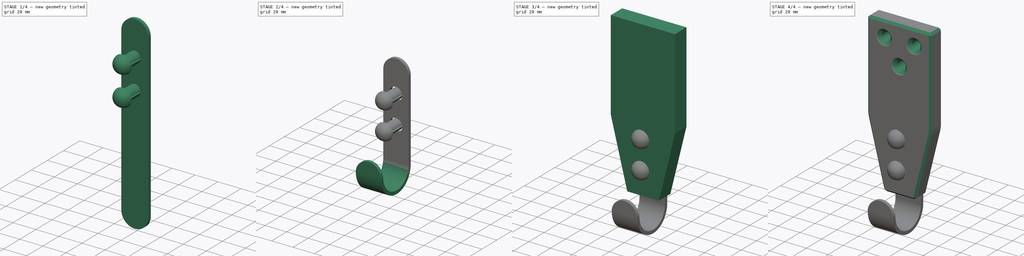
[diagram: build sequence overview — one tinted view per stage of 4, left to right]
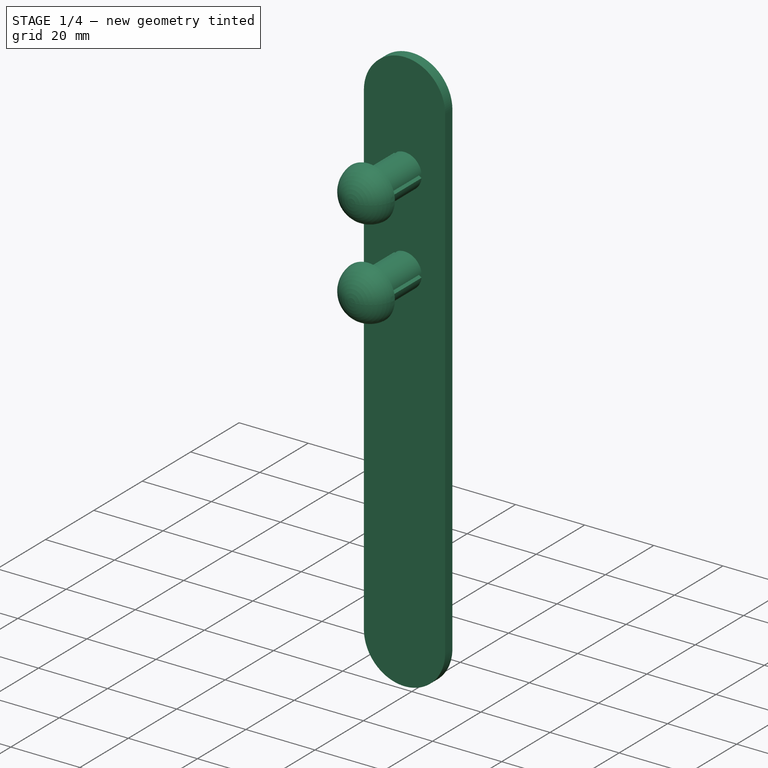
[diagram: stage 1 of 4 — iso view after this stage's code; geometry added in this stage tinted green]
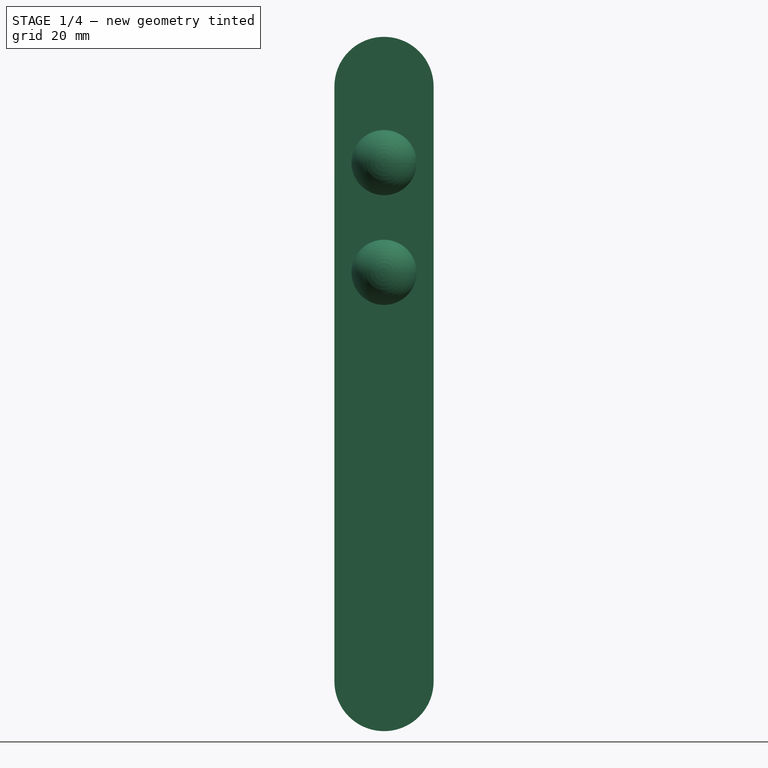
[diagram: stage 1 of 4 — front view after this stage's code; geometry added in this stage tinted green]
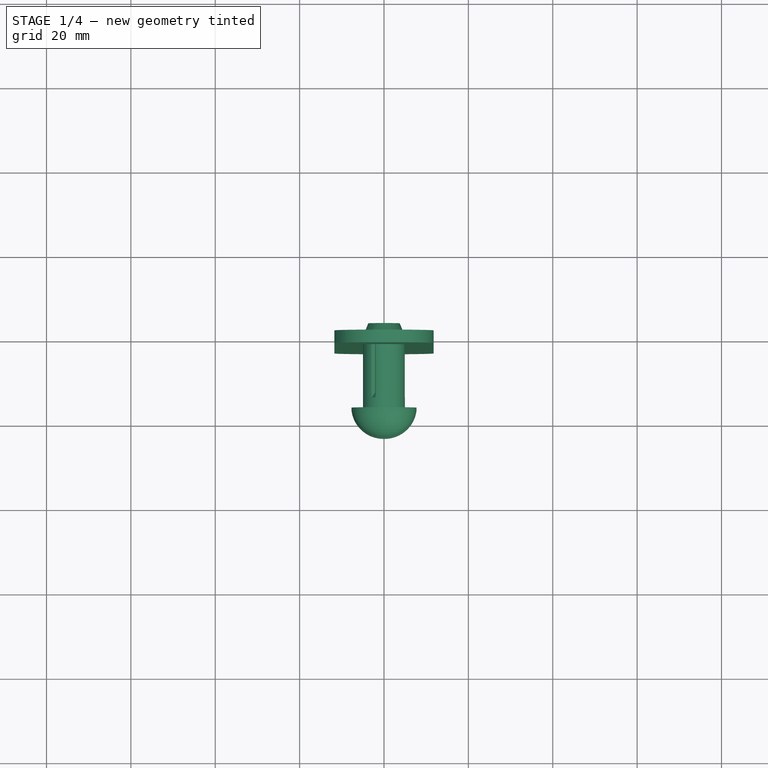
[diagram: stage 1 of 4 — top view after this stage's code; geometry added in this stage tinted green]
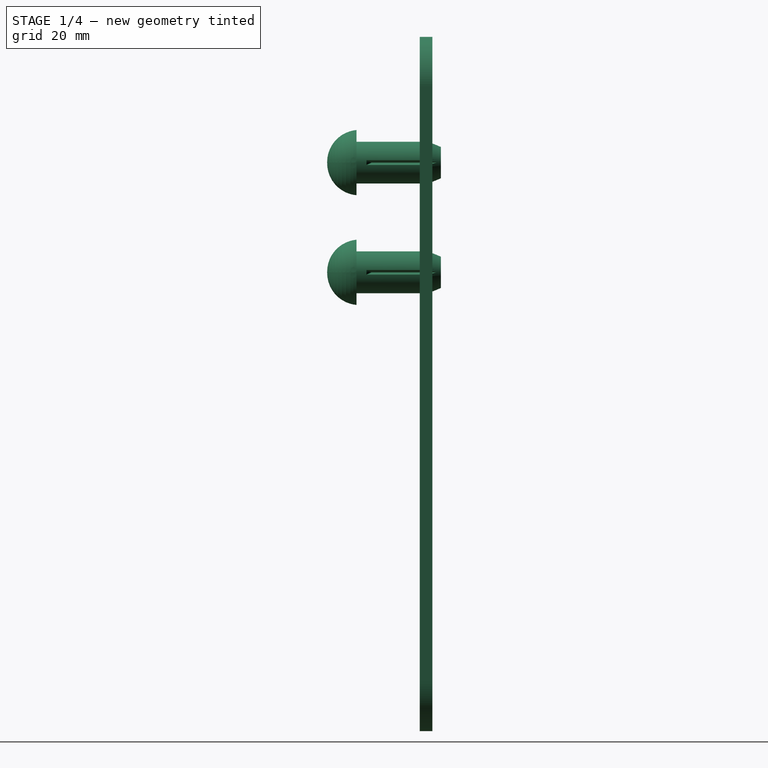
[diagram: stage 1 of 4 — right view after this stage's code; geometry added in this stage tinted green]
FCSTD DOCUMENT  (FreeCAD 0.21R33771 (Git))
Label: veshalka
License: All rights reserved
LicenseURL: http://en.wikipedia.org/wiki/All_rights_reserved
objects: Sketcher::SketchObject×6, PartDesign::Chamfer×3, PartDesign::Pad×2, PartDesign::Pocket×2, PartDesign::Body×2, PartDesign::FeaturePython×2, Part::FeaturePython×2
note: 26 computed .brp shape members not serialized (recipe doc carries the construction recipe); baked Part::Feature solids carry a one-line shape summary decoded from their .brp

FEATURE [PartDesign::Body] Body
  Group = -> [Sketch,Pad,Chamfer,Sketch001,Pocket,Chamfer001]
  Origin = -> Origin
  Tip = -> Chamfer001
FEATURE [Sketcher::SketchObject] Sketch002
  FullyConstrained = false
  MapMode = 5
  Placement = pos=(0,0,0) rot=(1,0,0;1.5708rad)
  Support = -> [XZ_Plane001]
  sketch-geometry (6):
    g0: ArcOfCircle CenterX=0 CenterY=-9.24228 CenterZ=0 NormalX=0 NormalY=0 NormalZ=1 AngleXU=0 Radius=11.7491 StartAngle=0 EndAngle=3.14159
    g1: ArcOfCircle CenterX=0 CenterY=-150.296 CenterZ=0 NormalX=0 NormalY=0 NormalZ=1 AngleXU=0 Radius=11.7491 StartAngle=3.14159 EndAngle=6.28319
    g2: LineSegment StartX=-11.7491 StartY=-9.24228 StartZ=0 EndX=-11.7491 EndY=-150.296 EndZ=0
    g3: LineSegment StartX=11.7491 StartY=-150.296 StartZ=0 EndX=11.7491 EndY=-9.24228 EndZ=0
    g4: Circle CenterX=0 CenterY=-27.2481 CenterZ=0 NormalX=0 NormalY=0 NormalZ=1 AngleXU=0 Radius=5.87136
    g5: Circle CenterX=0 CenterY=-53.5401 CenterZ=0 NormalX=0 NormalY=0 NormalZ=1 AngleXU=0 Radius=5.92296
  constraints (9):
    c: Tangent(g0,g2) = -1.5708
    c: Tangent(g2,g1) = -1.5708
    c: Tangent(g1,g3) = -1.5708
    c: Tangent(g3,g0) = -1.5708
    c: Equal(g0,g1)
    c: PointOnObject(g0,g-2)
    c: Vertical(g1,g-1)
    c: PointOnObject(g4,g-2)
    c: PointOnObject(g5,g-2)
FEATURE [PartDesign::Pad] Pad001
  Direction = (0,-1,2e-16)
  Length = 3
  Length2 = 10
  Placement = pos=(0,0,0) rot=(1,0,0;1.5708rad)
  Profile = -> Sketch002
  ReferenceAxis = -> Sketch002 [N_Axis]
  Refine = true
  Type = 0
FEATURE [PartDesign::Body] Body001
  Group = -> [Sketch002,Pad001,Sketch003,Fold,Sketch004,Fold001,Sketch005,Pocket001,Chamfer002]
  Origin = -> Origin001
  Placement = pos=(0,-15,0) rot=(0,0,1;0rad)
  Tip = -> Chamfer002
FEATURE [Part::FeaturePython] Pin  label="10 mmx20-Pin"  # Fasteners workbench fastener (typed FeaturePython)
  Placement = pos=(0,-18,-27.3) rot=(1,0,0;1.5708rad)
  diameter = 10
  invert = false
  leftHanded = false
  length = 7
  lengthCustom = 20
  offset = 0
  thread = false
  type = 20
FEATURE [Part::FeaturePython] Pin001  label="10 mmx20-Pin001"  # Fasteners workbench fastener (typed FeaturePython)
  Placement = pos=(0,-18,-53.3) rot=(1,0,0;1.5708rad)
  diameter = 10
  invert = false
  leftHanded = false
  length = 7
  lengthCustom = 20
  offset = 0
  thread = false
  type = 20
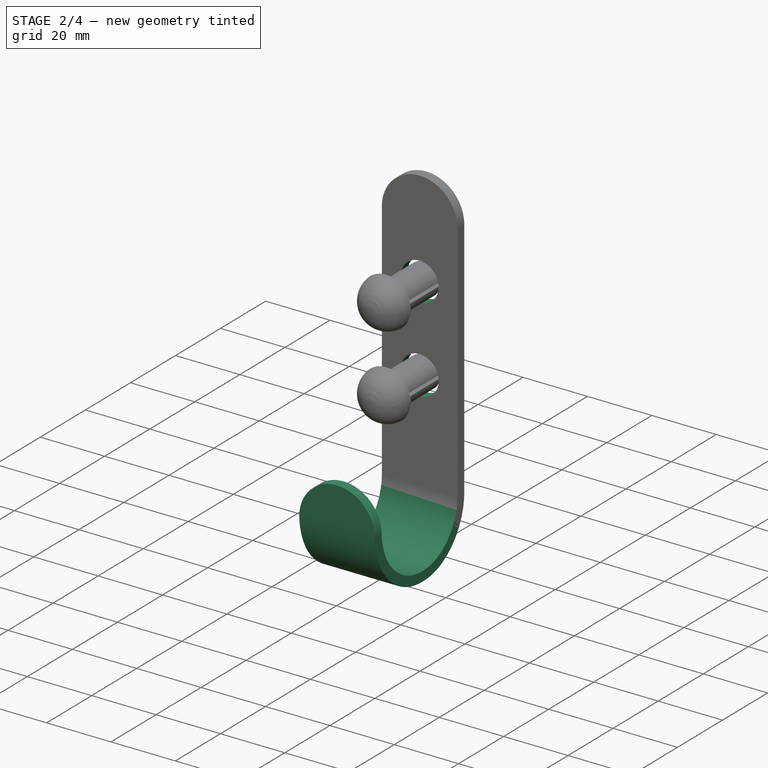
[diagram: stage 2 of 4 — iso view after this stage's code; geometry added in this stage tinted green]
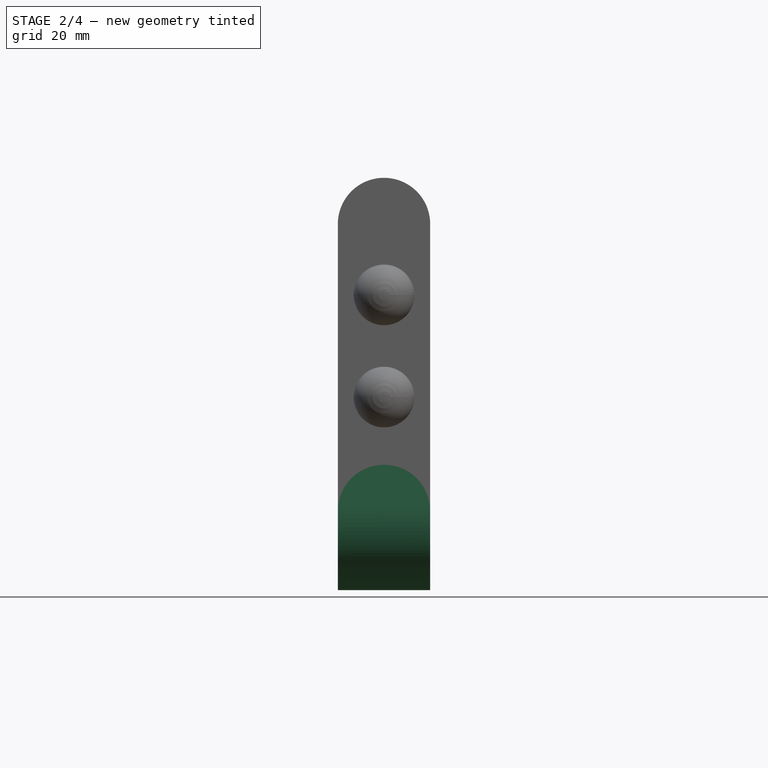
[diagram: stage 2 of 4 — front view after this stage's code; geometry added in this stage tinted green]
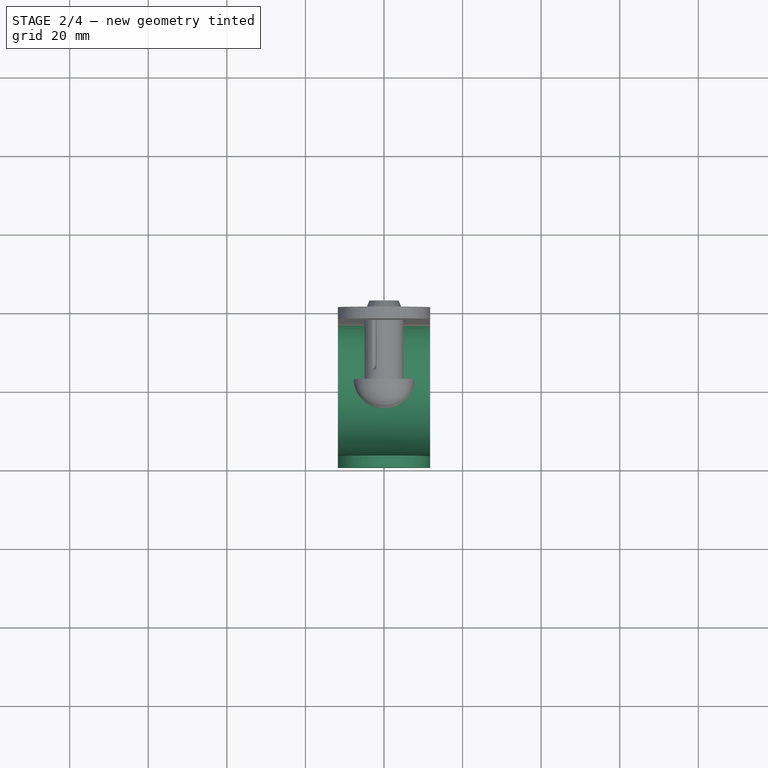
[diagram: stage 2 of 4 — top view after this stage's code; geometry added in this stage tinted green]
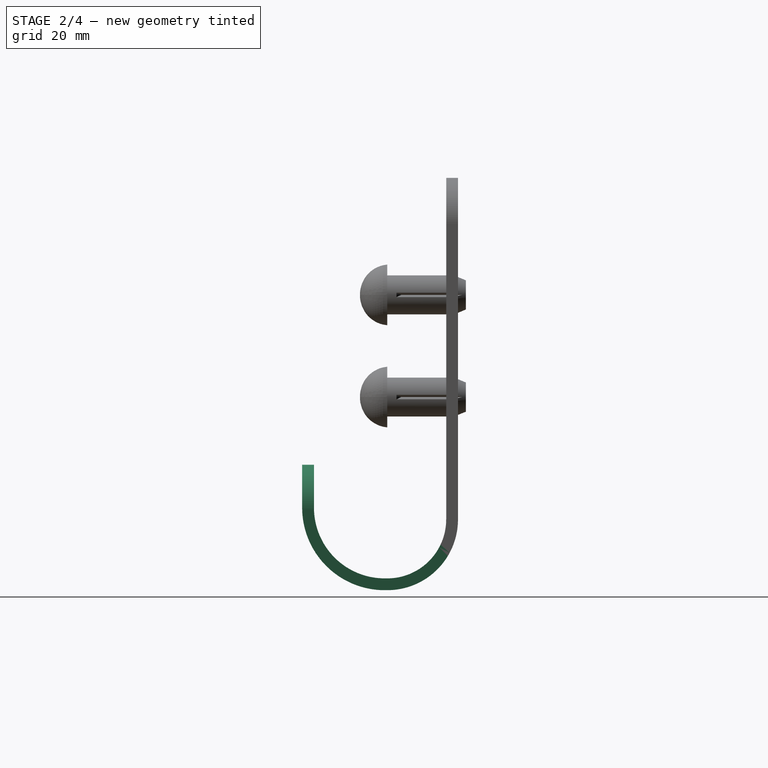
[diagram: stage 2 of 4 — right view after this stage's code; geometry added in this stage tinted green]
FEATURE [Sketcher::SketchObject] Sketch003
  FullyConstrained = false
  MapMode = 5
  Placement = pos=(0,-3,7e-16) rot=(1,0,0;1.5708rad)
  Support = -> [Pad001]
  sketch-geometry (1):
    g0: LineSegment StartX=-22.694 StartY=-99.4544 StartZ=0 EndX=29.787 EndY=-99.4544 EndZ=0
  constraints (1):
    c: Horizontal(g0)
FEATURE [PartDesign::FeaturePython] Fold  # WARN: FeaturePython — macro-defined, semantics opaque (R4)
  BaseFeature = -> Pad001
  BendLine = -> Sketch003
  Position = 0
  angle = 90
  baseObject = -> Pad001 [Face6]
  invert = false
  invertbend = false
  kfactor = 0.5
  radius = 15
  unfold = false
FEATURE [Sketcher::SketchObject] Sketch004
  FullyConstrained = false
  MapMode = 5
  Placement = pos=(0,-1.1e-14,-99.4544) rot=(0,0,1;0rad)
  Support = -> [Fold]
  sketch-geometry (1):
    g0: LineSegment StartX=-16.7815 StartY=-36.6614 StartZ=0 EndX=17.5479 EndY=-36.6614 EndZ=0
  constraints (1):
    c: Horizontal(g0)
FEATURE [PartDesign::FeaturePython] Fold001  # WARN: FeaturePython — macro-defined, semantics opaque (R4)
  BaseFeature = -> Fold
  BendLine = -> Sketch004
  Position = 0
  angle = 90
  baseObject = -> Fold [Face4]
  invert = false
  invertbend = false
  kfactor = 0.5
  radius = 18
  unfold = false
FEATURE [Sketcher::SketchObject] Sketch005
  FullyConstrained = false
  MapMode = 5
  Placement = pos=(0,0,0) rot=(1,0,0;1.5708rad)
  Support = -> [XZ_Plane001]
  sketch-geometry (6):
    g0: ArcOfCircle CenterX=0 CenterY=-9.24228 CenterZ=0 NormalX=0 NormalY=0 NormalZ=1 AngleXU=0 Radius=11.7491 StartAngle=0 EndAngle=3.14159
    g1: ArcOfCircle CenterX=0 CenterY=-150.296 CenterZ=0 NormalX=0 NormalY=0 NormalZ=1 AngleXU=0 Radius=11.7491 StartAngle=3.14159 EndAngle=6.28319
    g2: LineSegment StartX=-11.7491 StartY=-9.24228 StartZ=0 EndX=-11.7491 EndY=-150.296 EndZ=0
    g3: LineSegment StartX=11.7491 StartY=-150.296 StartZ=0 EndX=11.7491 EndY=-9.24228 EndZ=0
    g4: Circle CenterX=0 CenterY=-27.2481 CenterZ=0 NormalX=0 NormalY=0 NormalZ=1 AngleXU=0 Radius=5.87136
    g5: Circle CenterX=0 CenterY=-53.5401 CenterZ=0 NormalX=0 NormalY=0 NormalZ=1 AngleXU=0 Radius=5.92296
  constraints (9):
    c: Tangent(g0,g2) = -1.5708
    c: Tangent(g2,g1) = -1.5708
    c: Tangent(g1,g3) = -1.5708
    c: Tangent(g3,g0) = -1.5708
    c: Equal(g0,g1)
    c: PointOnObject(g0,g-2)
    c: Vertical(g1,g-1)
    c: PointOnObject(g4,g-2)
    c: PointOnObject(g5,g-2)
FEATURE [PartDesign::Pocket] Pocket001
  BaseFeature = -> Fold001
  Direction = (0,1,-2e-16)
  Length = 5
  Length2 = 5
  Profile = -> Sketch005
  ReferenceAxis = -> Sketch005 [N_Axis]
  Refine = true
  Reversed = true
  Type = 0
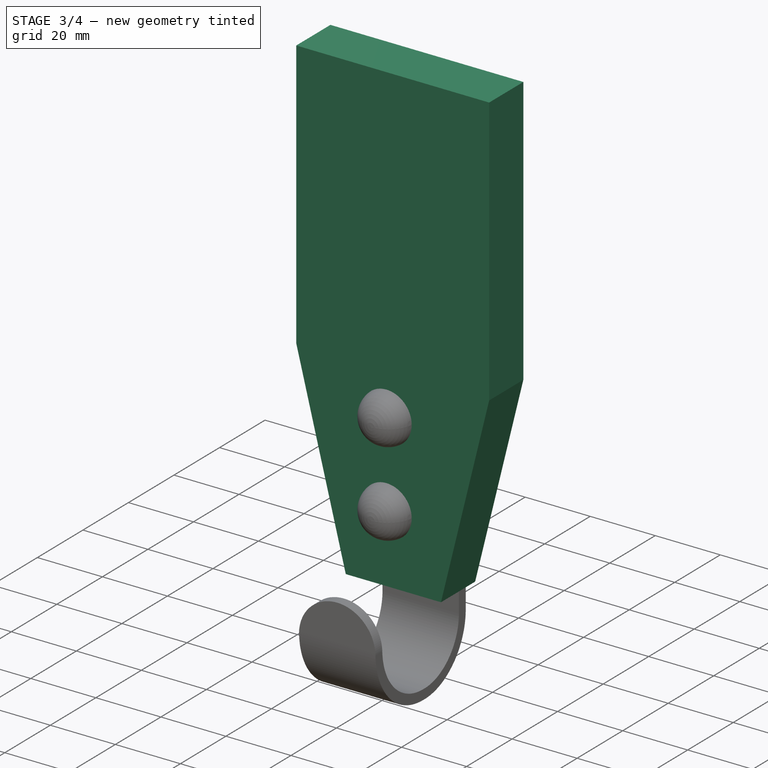
[diagram: stage 3 of 4 — iso view after this stage's code; geometry added in this stage tinted green]
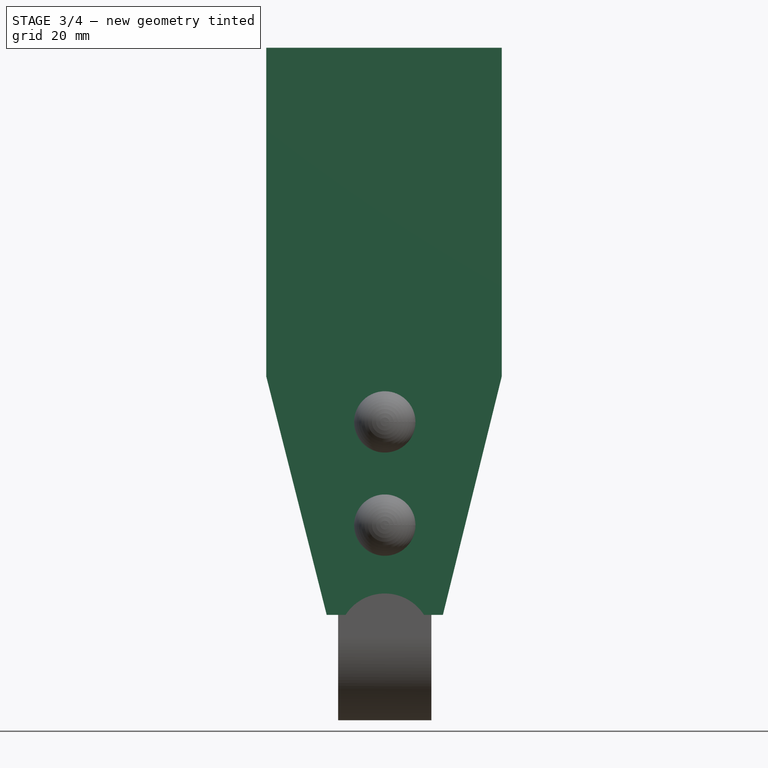
[diagram: stage 3 of 4 — front view after this stage's code; geometry added in this stage tinted green]
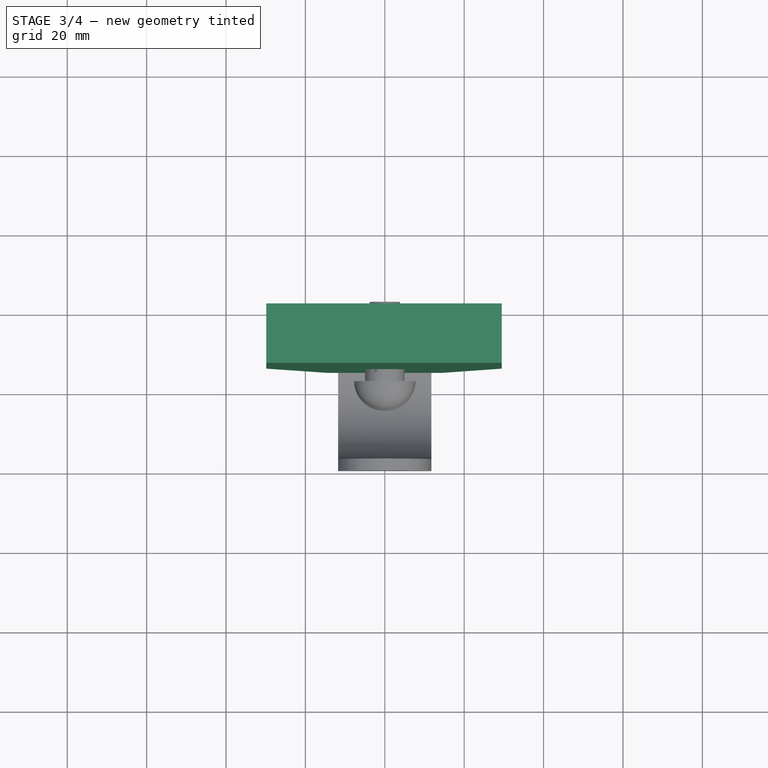
[diagram: stage 3 of 4 — top view after this stage's code; geometry added in this stage tinted green]
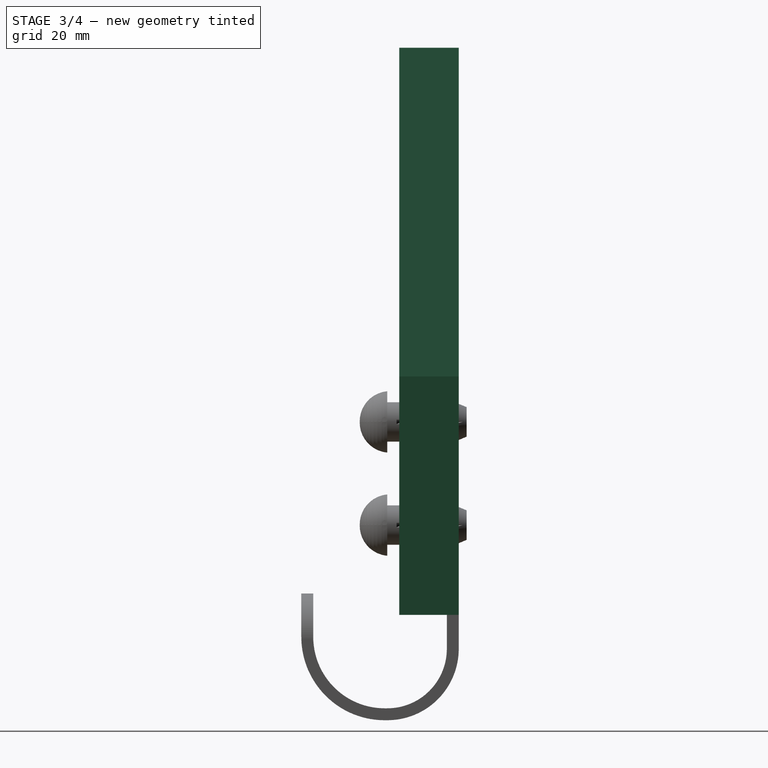
[diagram: stage 3 of 4 — right view after this stage's code; geometry added in this stage tinted green]
FEATURE [Sketcher::SketchObject] Sketch
  FullyConstrained = false
  MapMode = 5
  Placement = pos=(0,0,0) rot=(1,0,0;1.5708rad)
  Support = -> [XZ_Plane]
  sketch-geometry (13):
    g0: LineSegment StartX=-29.8633 StartY=-15.8494 StartZ=0 EndX=-29.8633 EndY=66.9502 EndZ=0
    g1: LineSegment StartX=-29.8633 StartY=66.9502 StartZ=0 EndX=29.4615 EndY=66.9502 EndZ=0
    g2: LineSegment StartX=29.4615 StartY=66.9502 StartZ=0 EndX=29.4615 EndY=-15.8494 EndZ=0
    g3: LineSegment StartX=14.6392 StartY=-75.9121 StartZ=0 EndX=-14.6392 EndY=-75.9121 EndZ=0
    g4: GeomPoint X=0 Y=0 Z=0
    g5: LineSegment StartX=-29.8633 StartY=-15.8494 StartZ=0 EndX=29.4615 EndY=-15.8494 EndZ=0
    g6: LineSegment StartX=-29.8633 StartY=-15.8494 StartZ=0 EndX=-14.6392 EndY=-75.9121 EndZ=0
    g7: LineSegment StartX=29.4615 StartY=-15.8494 StartZ=0 EndX=14.6392 EndY=-75.9121 EndZ=0
    g8: Circle CenterX=-13.8598 CenterY=52.6368 CenterZ=0 NormalX=0 NormalY=0 NormalZ=1 AngleXU=0 Radius=8.0042
    g9: Circle CenterX=13.8598 CenterY=52.6368 CenterZ=0 NormalX=0 NormalY=0 NormalZ=1 AngleXU=0 Radius=8.0042
    g10: Circle CenterX=0 CenterY=32.0204 CenterZ=0 NormalX=0 NormalY=0 NormalZ=1 AngleXU=0 Radius=8.0042
    g11: Circle CenterX=0 CenterY=-27.3621 CenterZ=0 NormalX=0 NormalY=0 NormalZ=1 AngleXU=0 Radius=5.77601
    g12: Circle CenterX=0 CenterY=-53.4256 CenterZ=0 NormalX=0 NormalY=0 NormalZ=1 AngleXU=0 Radius=5.77601
  constraints (22):
    c: Coincident(g0,g1)
    c: Coincident(g1,g2)
    c: Horizontal(g1)
    c: Horizontal(g3)
    c: Vertical(g0)
    c: Vertical(g2)
    c: Coincident(g4,g-1)
    c: Horizontal(g5)
    c: Coincident(g6,g5)
    c: Symmetric(g6,g7,g-2)
    c: Coincident(g0,g5)
    c: Coincident(g3,g6)
    c: Coincident(g2,g5)
    c: PointOnObject(g3,g7)
    c: Equal(g9,g8)
    c: PointOnObject(g10,g-2)
    c: Equal(g9,g10)
    c: Symmetric(g8,g9,g-2)
    c: PointOnObject(g11,g-2)
    c: PointOnObject(g12,g-2)
    c: Equal(g11,g12)
    c: Coincident(g7,g2)
FEATURE [PartDesign::Pad] Pad
  Direction = (0,-1,2e-16)
  Length = 15
  Length2 = 10
  Placement = pos=(0,0,0) rot=(1,0,0;1.5708rad)
  Profile = -> Sketch
  ReferenceAxis = -> Sketch [N_Axis]
  Refine = true
  Type = 0
FEATURE [PartDesign::Chamfer] Chamfer002
  Angle = 45
  Base = -> Pocket001 [Edge40,Edge39]
  BaseFeature = -> Pocket001
  ChamferType = 0
  FlipDirection = false
  Refine = true
  Size = 1
  Size2 = 1
  SupportTransform = false
  UseAllEdges = false
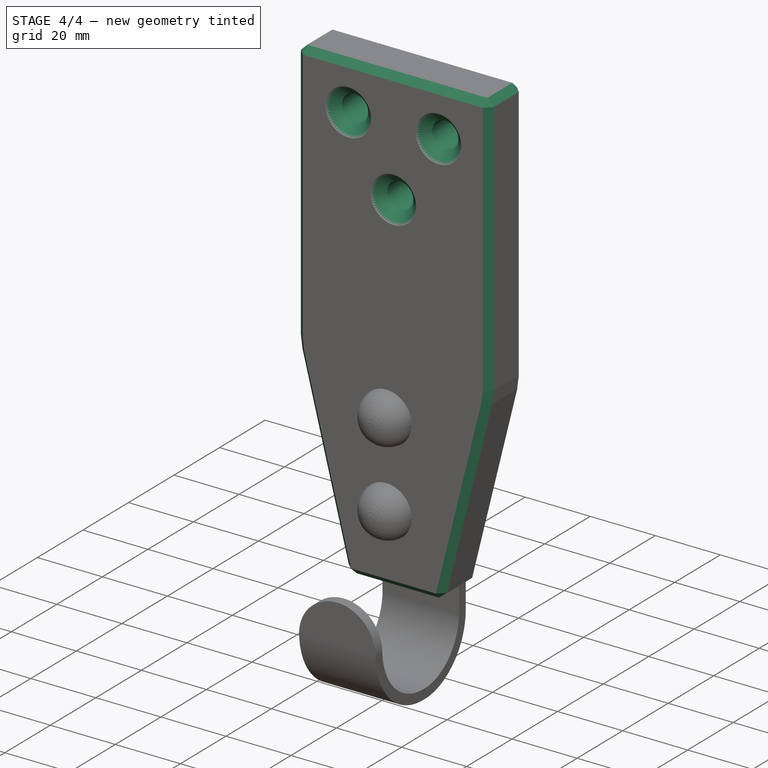
[diagram: stage 4 of 4 — iso view after this stage's code; geometry added in this stage tinted green]
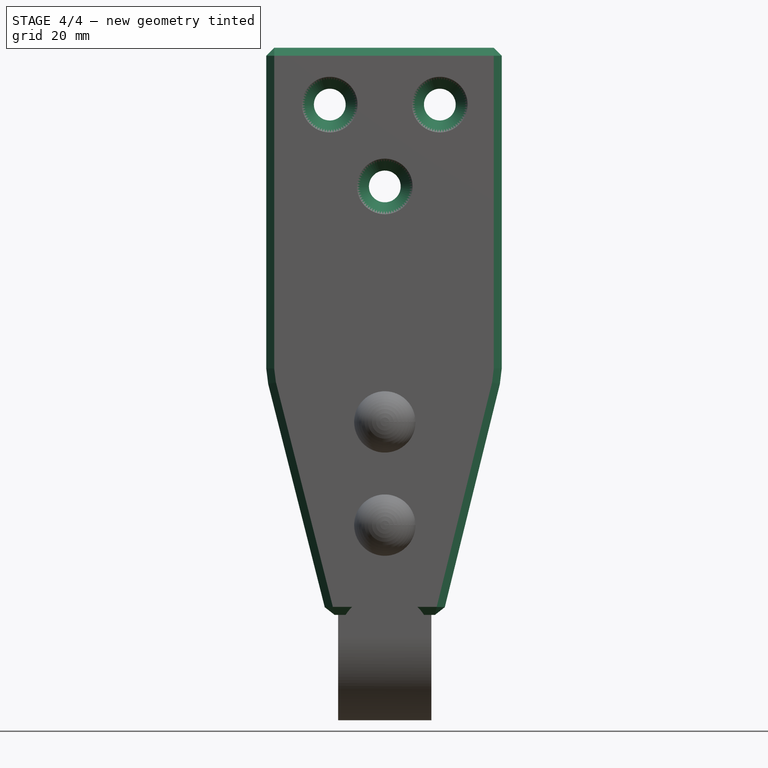
[diagram: stage 4 of 4 — front view after this stage's code; geometry added in this stage tinted green]
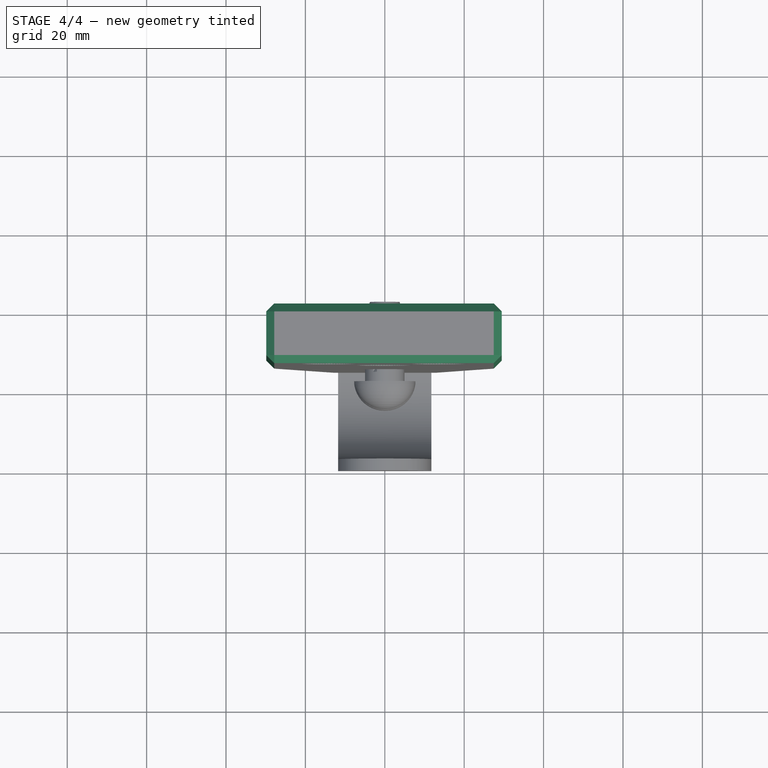
[diagram: stage 4 of 4 — top view after this stage's code; geometry added in this stage tinted green]
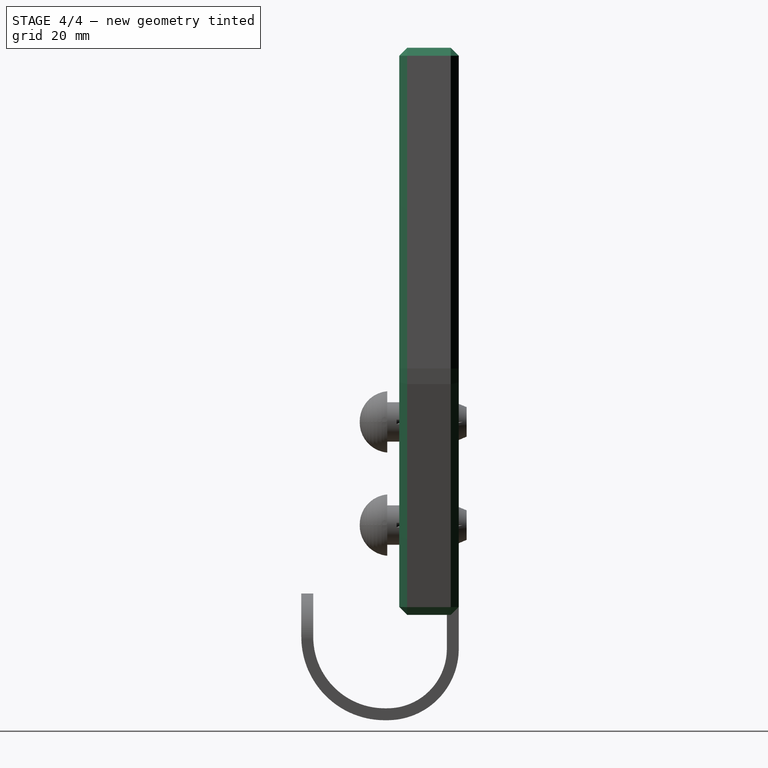
[diagram: stage 4 of 4 — right view after this stage's code; geometry added in this stage tinted green]
FEATURE [PartDesign::Chamfer] Chamfer
  Angle = 45
  Base = -> Pad [Edge1,Edge2,Edge3,Edge4,Edge5,Edge6,Edge7,Edge8,Edge9,Edge10,Edge11,Edge12,Edge13,Edge14,Edge15,Edge16,Edge17,Edge18]
  BaseFeature = -> Pad
  ChamferType = 0
  FlipDirection = false
  Placement = pos=(0,0,0) rot=(1,0,0;1.5708rad)
  Refine = true
  Size = 2
  Size2 = 1
  SupportTransform = false
  UseAllEdges = true
FEATURE [Sketcher::SketchObject] Sketch001
  FullyConstrained = false
  MapMode = 5
  Placement = pos=(0,0,0) rot=(1,0,0;1.5708rad)
  Support = -> [XZ_Plane]
  sketch-geometry (13):
    g0: LineSegment StartX=-29.8633 StartY=-15.8494 StartZ=0 EndX=-29.8633 EndY=66.9502 EndZ=0
    g1: LineSegment StartX=-29.8633 StartY=66.9502 StartZ=0 EndX=29.4615 EndY=66.9502 EndZ=0
    g2: LineSegment StartX=29.4615 StartY=66.9502 StartZ=0 EndX=29.4615 EndY=-15.8494 EndZ=0
    g3: LineSegment StartX=14.6392 StartY=-75.9121 StartZ=0 EndX=-14.6392 EndY=-75.9121 EndZ=0
    g4: GeomPoint X=0 Y=0 Z=0
    g5: LineSegment StartX=-29.8633 StartY=-15.8494 StartZ=0 EndX=29.4615 EndY=-15.8494 EndZ=0
    g6: LineSegment StartX=-29.8633 StartY=-15.8494 StartZ=0 EndX=-14.6392 EndY=-75.9121 EndZ=0
    g7: LineSegment StartX=29.4615 StartY=-15.8494 StartZ=0 EndX=14.6392 EndY=-75.9121 EndZ=0
    g8: Circle CenterX=-13.8598 CenterY=52.6368 CenterZ=0 NormalX=0 NormalY=0 NormalZ=1 AngleXU=0 Radius=4
    g9: Circle CenterX=13.8598 CenterY=52.6368 CenterZ=0 NormalX=0 NormalY=0 NormalZ=1 AngleXU=0 Radius=4
    g10: Circle CenterX=0 CenterY=32.0204 CenterZ=0 NormalX=0 NormalY=0 NormalZ=1 AngleXU=0 Radius=4
    g11: Circle CenterX=0 CenterY=-27.3621 CenterZ=0 NormalX=0 NormalY=0 NormalZ=1 AngleXU=0 Radius=5
    g12: Circle CenterX=0 CenterY=-53.4256 CenterZ=0 NormalX=0 NormalY=0 NormalZ=1 AngleXU=0 Radius=5
  constraints (24):
    c: Coincident(g0,g1)
    c: Coincident(g1,g2)
    c: Horizontal(g1)
    c: Horizontal(g3)
    c: Vertical(g0)
    c: Vertical(g2)
    c: Coincident(g4,g-1)
    c: Horizontal(g5)
    c: Coincident(g6,g5)
    c: Symmetric(g6,g7,g-2)
    c: Coincident(g0,g5)
    c: Coincident(g3,g6)
    c: Coincident(g2,g5)
    c: PointOnObject(g3,g7)
    c: Equal(g9,g8)
    c: PointOnObject(g10,g-2)
    c: Equal(g9,g10)
    c: Symmetric(g8,g9,g-2)
    c: PointOnObject(g11,g-2)
    c: PointOnObject(g12,g-2)
    c: Equal(g11,g12)
    c: Coincident(g7,g2)
    c: Radius(g11) = 5
    c: Radius(g9) = 4
FEATURE [PartDesign::Pocket] Pocket
  BaseFeature = -> Chamfer
  Direction = (0,1,-2e-16)
  Length = 5
  Length2 = 5
  Placement = pos=(0,0,0) rot=(1,0,0;1.5708rad)
  Profile = -> Sketch001
  ReferenceAxis = -> Sketch001 [N_Axis]
  Refine = true
  Reversed = true
  Type = 1
FEATURE [PartDesign::Chamfer] Chamfer001
  Angle = 45
  Base = -> Pocket [Edge44,Edge46,Edge45]
  BaseFeature = -> Pocket
  ChamferType = 0
  FlipDirection = false
  Placement = pos=(0,0,0) rot=(1,0,0;1.5708rad)
  Refine = true
  Size = 3
  Size2 = 1
  SupportTransform = false
  UseAllEdges = false
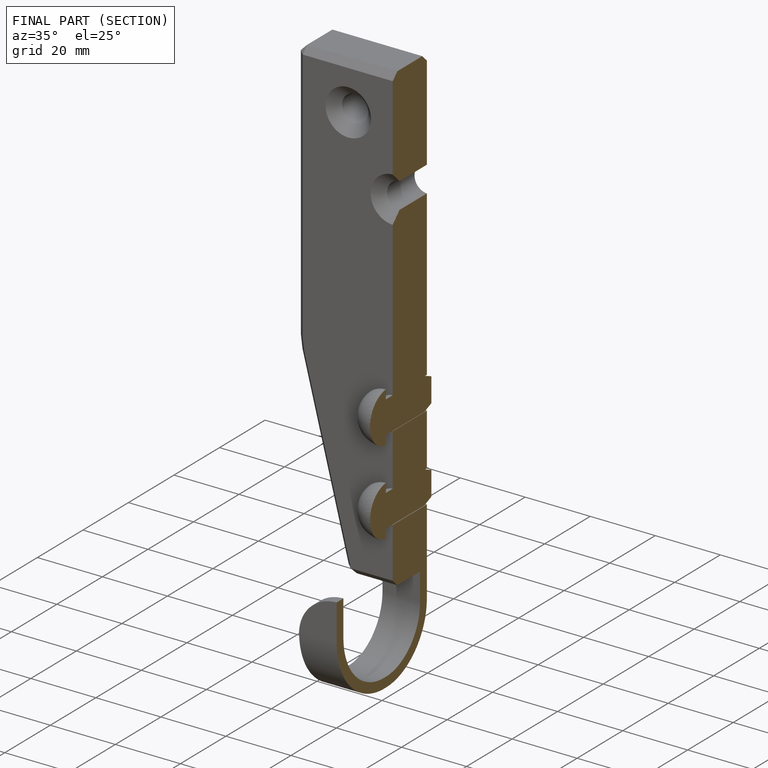
[diagram: finished part — half-section view (interior)]
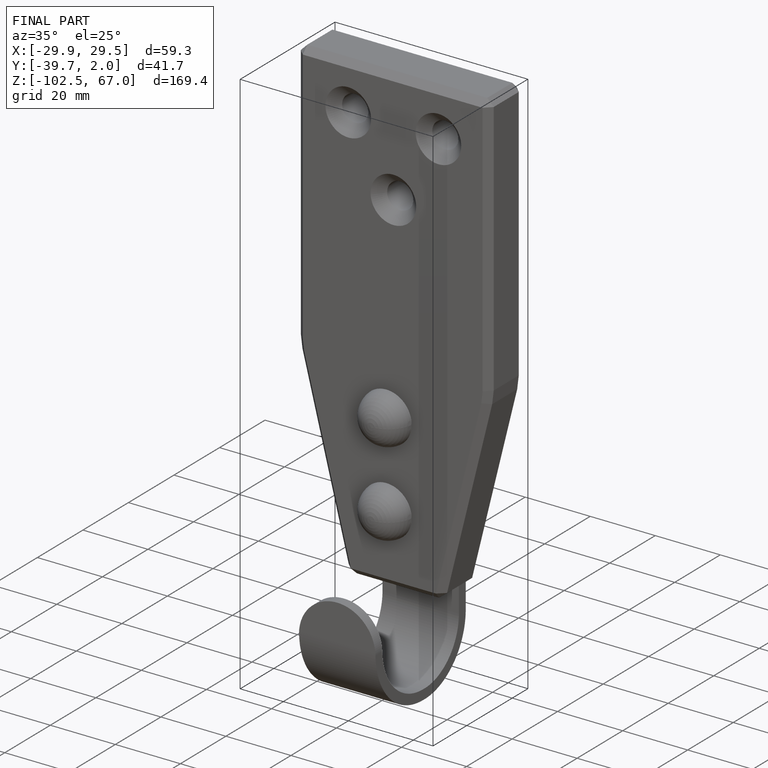
[diagram: finished part — iso view with bounding-box wireframe]
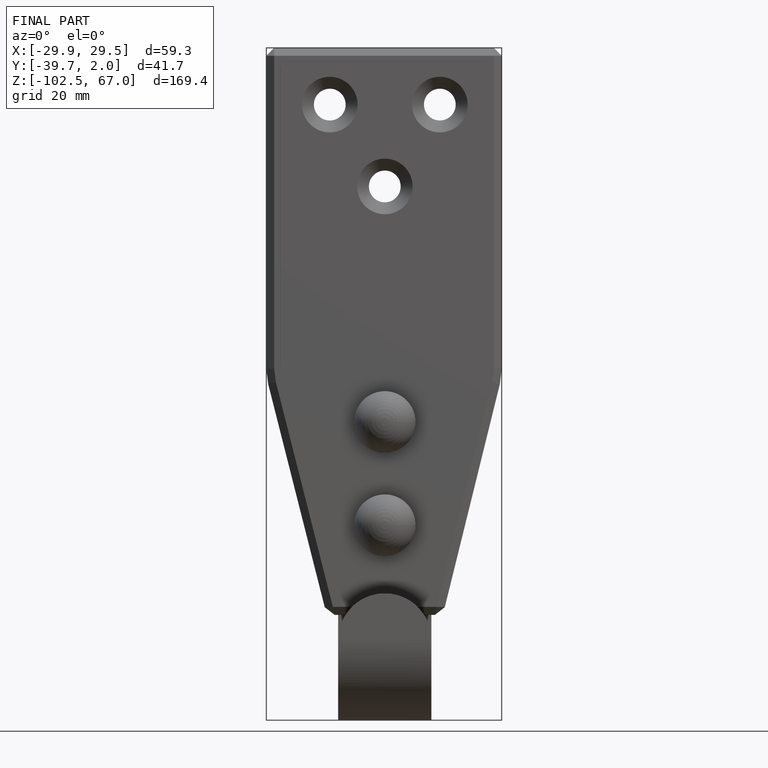
[diagram: finished part — front view with bounding-box wireframe]
